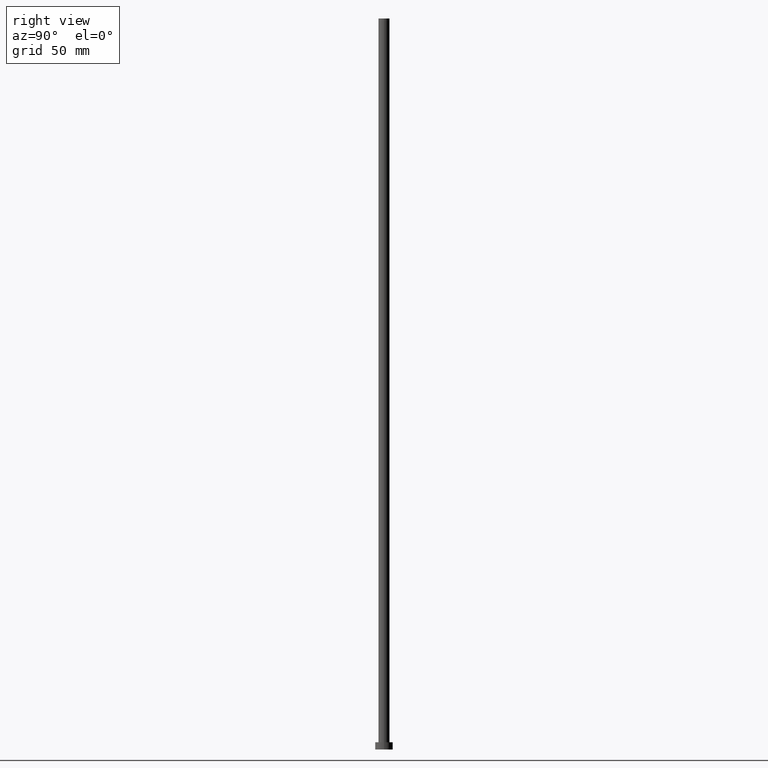
[diagram: clean part render]
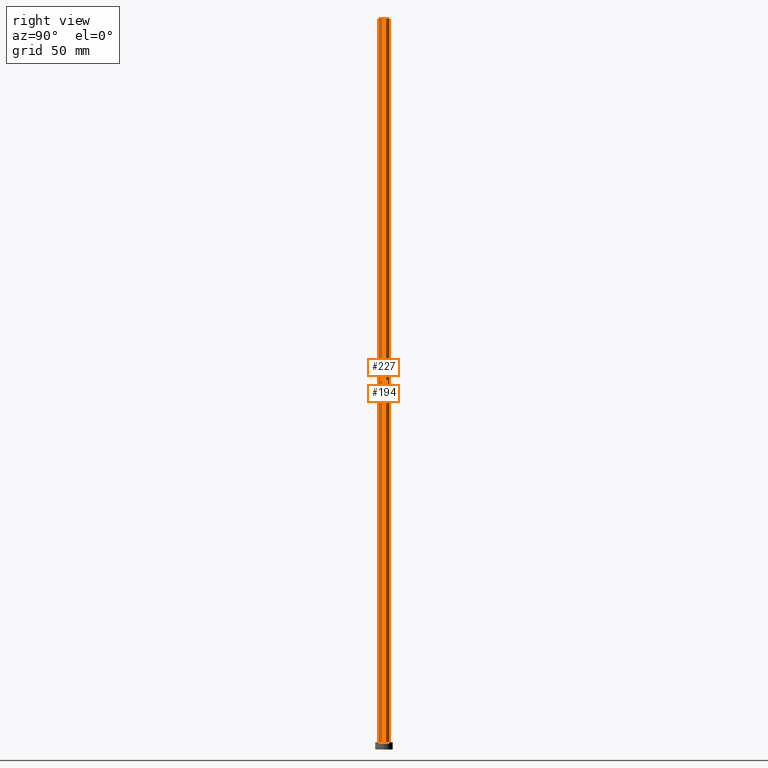
[diagram: same view with one multi-face feature highlighted, each face labeled with its STEP entity id]
A machine part, right view. The highlighted faces form ONE feature: a constant-radius fillet chain: 2 tangent blend faces with common blend radius 3.75 mm. The faces share edges in the B-rep.
Their STEP definitions:
[1] entity #194 (Cylinder):
#1 = FACE_OUTER_BOUND ( 'NONE', #90, .T. ) ;
#2 = EDGE_CURVE ( 'NONE', #150, #92, #72, .T. ) ;
#16 = AXIS2_PLACEMENT_3D ( 'NONE', #141, #200, #187 ) ;
#21 = ORIENTED_EDGE ( 'NONE', *, *, #204, .F. ) ;
#23 = DIRECTION ( 'NONE',  ( -0.000000000000000000, -0.000000000000000000, -1.000000000000000000 ) ) ;
#26 = CARTESIAN_POINT ( 'NONE',  ( 0.000000000000000000, 0.000000000000000000, 500.0000000000000000 ) ) ;
#41 = CARTESIAN_POINT ( 'NONE',  ( -3.750000000000000000, 0.000000000000000000, 500.0000000000000000 ) ) ;
#52 = ORIENTED_EDGE ( 'NONE', *, *, #2, .T. ) ;
#55 = DIRECTION ( 'NONE',  ( 1.000000000000000000, 0.000000000000000000, 0.000000000000000000 ) ) ;
#68 = CARTESIAN_POINT ( 'NONE',  ( -3.750000000000000000, 0.000000000000000000, 5.000000000000000000 ) ) ;
#72 = CIRCLE ( 'NONE', #16, 3.750000000000000000 ) ;
#73 = CARTESIAN_POINT ( 'NONE',  ( 3.750000000000000000, 4.592425496802573972E-16, 500.0000000000000000 ) ) ;
#79 = DIRECTION ( 'NONE',  ( -0.000000000000000000, -0.000000000000000000, -1.000000000000000000 ) ) ;
#90 = EDGE_LOOP ( 'NONE', ( #21, #216, #52, #93 ) ) ;
#92 = VERTEX_POINT ( 'NONE', #68 ) ;
#93 = ORIENTED_EDGE ( 'NONE', *, *, #190, .F. ) ;
#96 = LINE ( 'NONE', #41, #146 ) ;
#110 = LINE ( 'NONE', #213, #134 ) ;
#134 = VECTOR ( 'NONE', #23, 1000.000000000000000 ) ;
#141 = CARTESIAN_POINT ( 'NONE',  ( 0.000000000000000000, 0.000000000000000000, 5.000000000000000000 ) ) ;
#146 = VECTOR ( 'NONE', #79, 1000.000000000000000 ) ;
#150 = VERTEX_POINT ( 'NONE', #195 ) ;
#156 = CARTESIAN_POINT ( 'NONE',  ( -3.750000000000000000, 0.000000000000000000, 500.0000000000000000 ) ) ;
#159 = DIRECTION ( 'NONE',  ( 0.000000000000000000, 0.000000000000000000, 1.000000000000000000 ) ) ;
#160 = VERTEX_POINT ( 'NONE', #156 ) ;
#161 = DIRECTION ( 'NONE',  ( -1.000000000000000000, 0.000000000000000000, 0.000000000000000000 ) ) ;
#169 = CIRCLE ( 'NONE', #228, 3.750000000000000000 ) ;
#179 = DIRECTION ( 'NONE',  ( -0.000000000000000000, -0.000000000000000000, -1.000000000000000000 ) ) ;
#187 = DIRECTION ( 'NONE',  ( 1.000000000000000000, 0.000000000000000000, 0.000000000000000000 ) ) ;
#190 = EDGE_CURVE ( 'NONE', #160, #92, #96, .T. ) ;
#194 = ADVANCED_FACE ( 'NONE', ( #1 ), #235, .T. ) ;
#195 = CARTESIAN_POINT ( 'NONE',  ( 3.750000000000000000, 4.592425496802573972E-16, 5.000000000000000000 ) ) ;
#200 = DIRECTION ( 'NONE',  ( 0.000000000000000000, 0.000000000000000000, 1.000000000000000000 ) ) ;
#204 = EDGE_CURVE ( 'NONE', #214, #160, #169, .T. ) ;
#205 = AXIS2_PLACEMENT_3D ( 'NONE', #26, #179, #161 ) ;
#213 = CARTESIAN_POINT ( 'NONE',  ( 3.750000000000000000, 4.592425496802573972E-16, 500.0000000000000000 ) ) ;
#214 = VERTEX_POINT ( 'NONE', #73 ) ;
#216 = ORIENTED_EDGE ( 'NONE', *, *, #221, .T. ) ;
#221 = EDGE_CURVE ( 'NONE', #214, #150, #110, .T. ) ;
#228 = AXIS2_PLACEMENT_3D ( 'NONE', #237, #159, #55 ) ;
#235 = CYLINDRICAL_SURFACE ( 'NONE', #205, 3.750000000000000000 ) ;
#237 = CARTESIAN_POINT ( 'NONE',  ( 0.000000000000000000, 0.000000000000000000, 500.0000000000000000 ) ) ;
[2] entity #227 (Cylinder):
#3 = CARTESIAN_POINT ( 'NONE',  ( 0.000000000000000000, 0.000000000000000000, 500.0000000000000000 ) ) ;
#5 = ORIENTED_EDGE ( 'NONE', *, *, #157, .F. ) ;
#23 = DIRECTION ( 'NONE',  ( -0.000000000000000000, -0.000000000000000000, -1.000000000000000000 ) ) ;
#30 = AXIS2_PLACEMENT_3D ( 'NONE', #210, #240, #181 ) ;
#40 = CIRCLE ( 'NONE', #30, 3.750000000000000000 ) ;
#41 = CARTESIAN_POINT ( 'NONE',  ( -3.750000000000000000, 0.000000000000000000, 500.0000000000000000 ) ) ;
#42 = DIRECTION ( 'NONE',  ( 0.000000000000000000, 0.000000000000000000, 1.000000000000000000 ) ) ;
#53 = CYLINDRICAL_SURFACE ( 'NONE', #88, 3.750000000000000000 ) ;
#59 = ORIENTED_EDGE ( 'NONE', *, *, #250, .T. ) ;
#68 = CARTESIAN_POINT ( 'NONE',  ( -3.750000000000000000, 0.000000000000000000, 5.000000000000000000 ) ) ;
#73 = CARTESIAN_POINT ( 'NONE',  ( 3.750000000000000000, 4.592425496802573972E-16, 500.0000000000000000 ) ) ;
#78 = ORIENTED_EDGE ( 'NONE', *, *, #190, .T. ) ;
#79 = DIRECTION ( 'NONE',  ( -0.000000000000000000, -0.000000000000000000, -1.000000000000000000 ) ) ;
#88 = AXIS2_PLACEMENT_3D ( 'NONE', #198, #133, #186 ) ;
#92 = VERTEX_POINT ( 'NONE', #68 ) ;
#96 = LINE ( 'NONE', #41, #146 ) ;
#110 = LINE ( 'NONE', #213, #134 ) ;
#120 = AXIS2_PLACEMENT_3D ( 'NONE', #3, #42, #196 ) ;
#127 = EDGE_LOOP ( 'NONE', ( #154, #5, #78, #59 ) ) ;
#133 = DIRECTION ( 'NONE',  ( -0.000000000000000000, -0.000000000000000000, -1.000000000000000000 ) ) ;
#134 = VECTOR ( 'NONE', #23, 1000.000000000000000 ) ;
#146 = VECTOR ( 'NONE', #79, 1000.000000000000000 ) ;
#150 = VERTEX_POINT ( 'NONE', #195 ) ;
#154 = ORIENTED_EDGE ( 'NONE', *, *, #221, .F. ) ;
#156 = CARTESIAN_POINT ( 'NONE',  ( -3.750000000000000000, 0.000000000000000000, 500.0000000000000000 ) ) ;
#157 = EDGE_CURVE ( 'NONE', #160, #214, #234, .T. ) ;
#160 = VERTEX_POINT ( 'NONE', #156 ) ;
#181 = DIRECTION ( 'NONE',  ( 1.000000000000000000, 0.000000000000000000, 0.000000000000000000 ) ) ;
#186 = DIRECTION ( 'NONE',  ( -1.000000000000000000, 0.000000000000000000, 0.000000000000000000 ) ) ;
#190 = EDGE_CURVE ( 'NONE', #160, #92, #96, .T. ) ;
#195 = CARTESIAN_POINT ( 'NONE',  ( 3.750000000000000000, 4.592425496802573972E-16, 5.000000000000000000 ) ) ;
#196 = DIRECTION ( 'NONE',  ( 1.000000000000000000, 0.000000000000000000, 0.000000000000000000 ) ) ;
#198 = CARTESIAN_POINT ( 'NONE',  ( 0.000000000000000000, 0.000000000000000000, 500.0000000000000000 ) ) ;
#210 = CARTESIAN_POINT ( 'NONE',  ( 0.000000000000000000, 0.000000000000000000, 5.000000000000000000 ) ) ;
#213 = CARTESIAN_POINT ( 'NONE',  ( 3.750000000000000000, 4.592425496802573972E-16, 500.0000000000000000 ) ) ;
#214 = VERTEX_POINT ( 'NONE', #73 ) ;
#215 = FACE_OUTER_BOUND ( 'NONE', #127, .T. ) ;
#221 = EDGE_CURVE ( 'NONE', #214, #150, #110, .T. ) ;
#227 = ADVANCED_FACE ( 'NONE', ( #215 ), #53, .T. ) ;
#234 = CIRCLE ( 'NONE', #120, 3.750000000000000000 ) ;
#240 = DIRECTION ( 'NONE',  ( 0.000000000000000000, 0.000000000000000000, 1.000000000000000000 ) ) ;
#250 = EDGE_CURVE ( 'NONE', #92, #150, #40, .T. ) ;